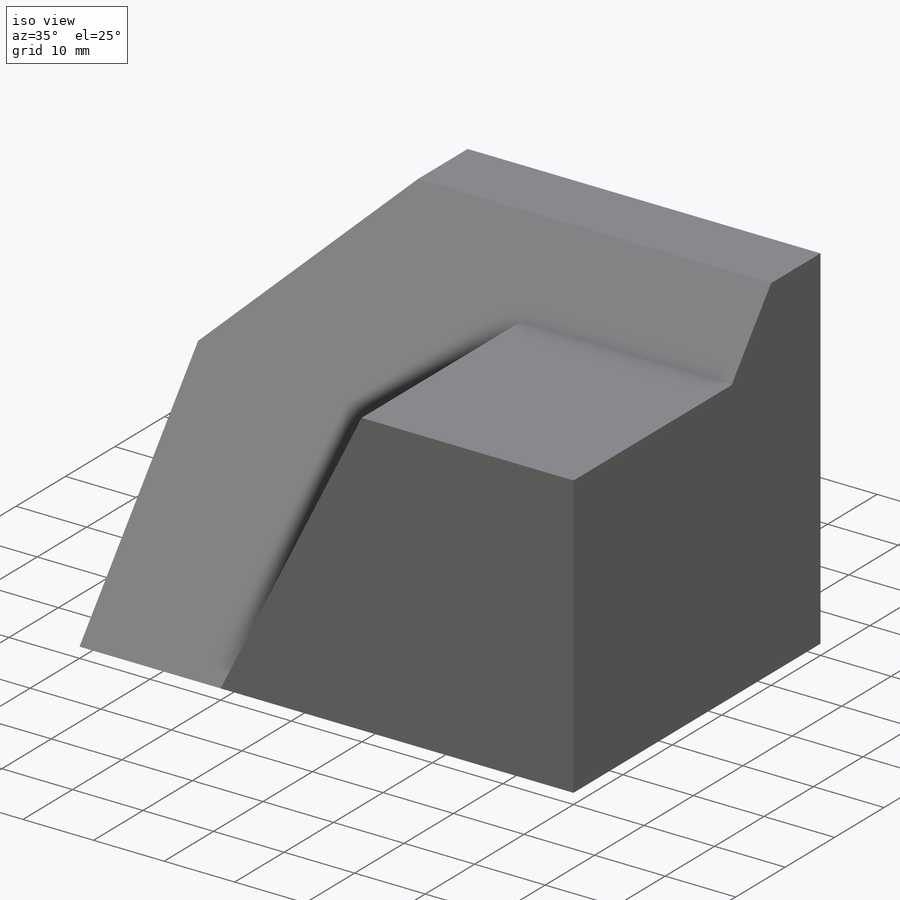
[diagram: iso view]
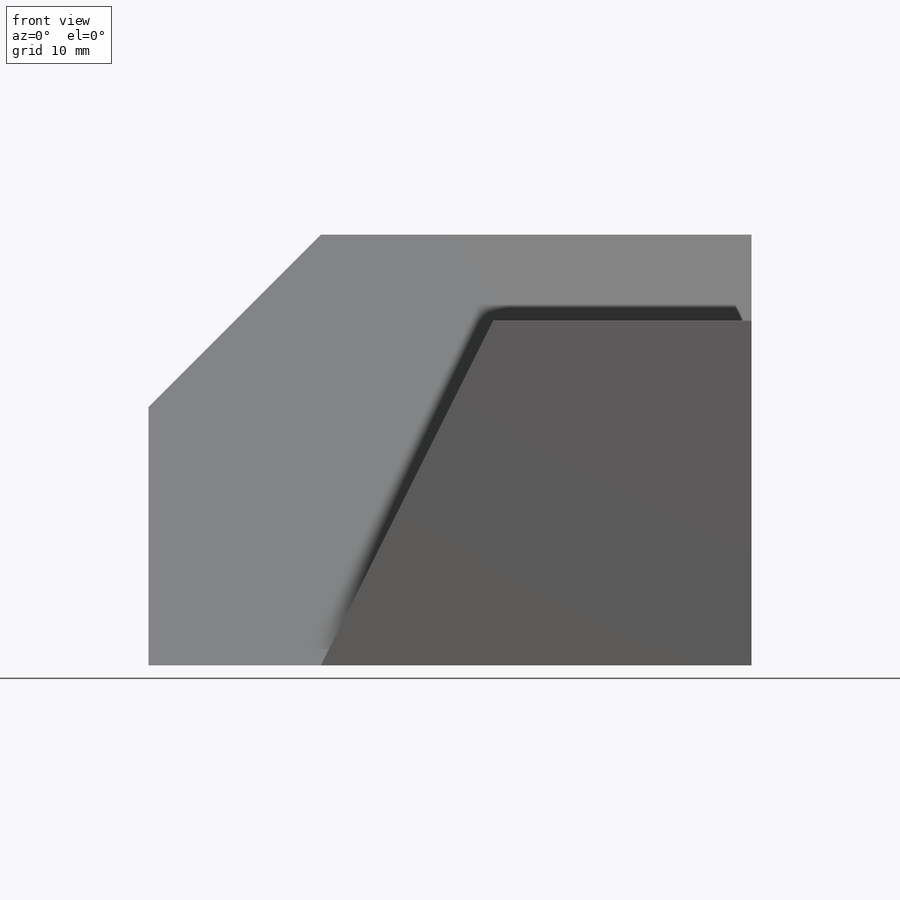
[diagram: front view]
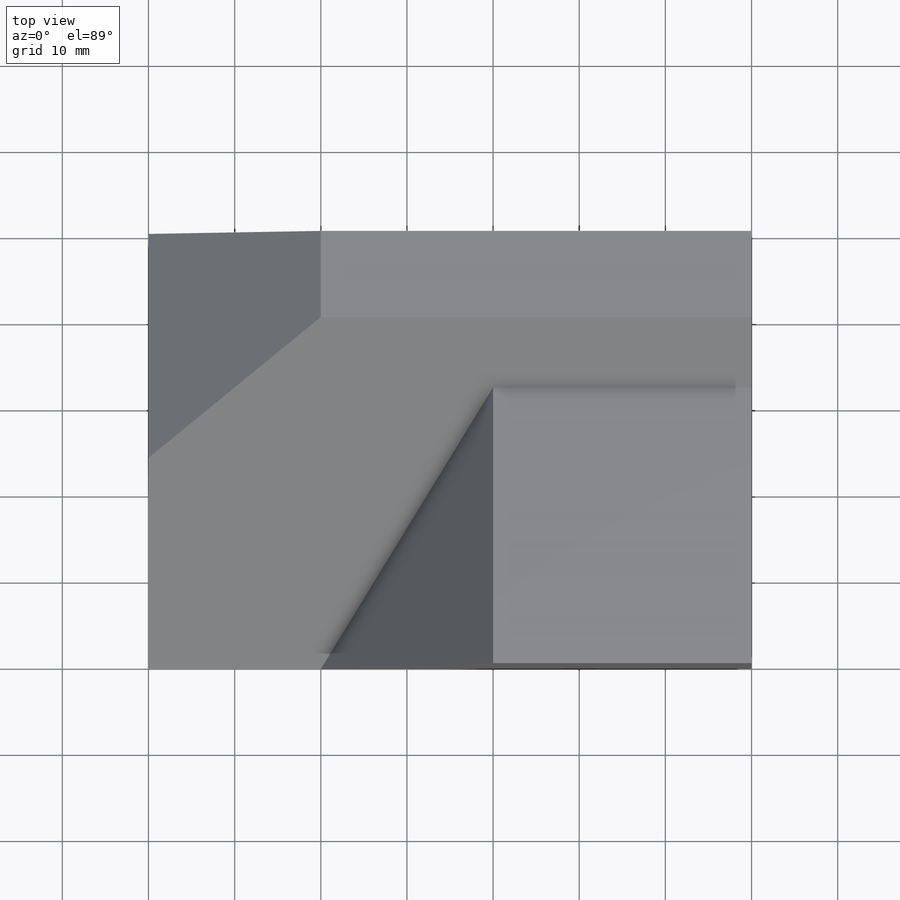
[diagram: top view]
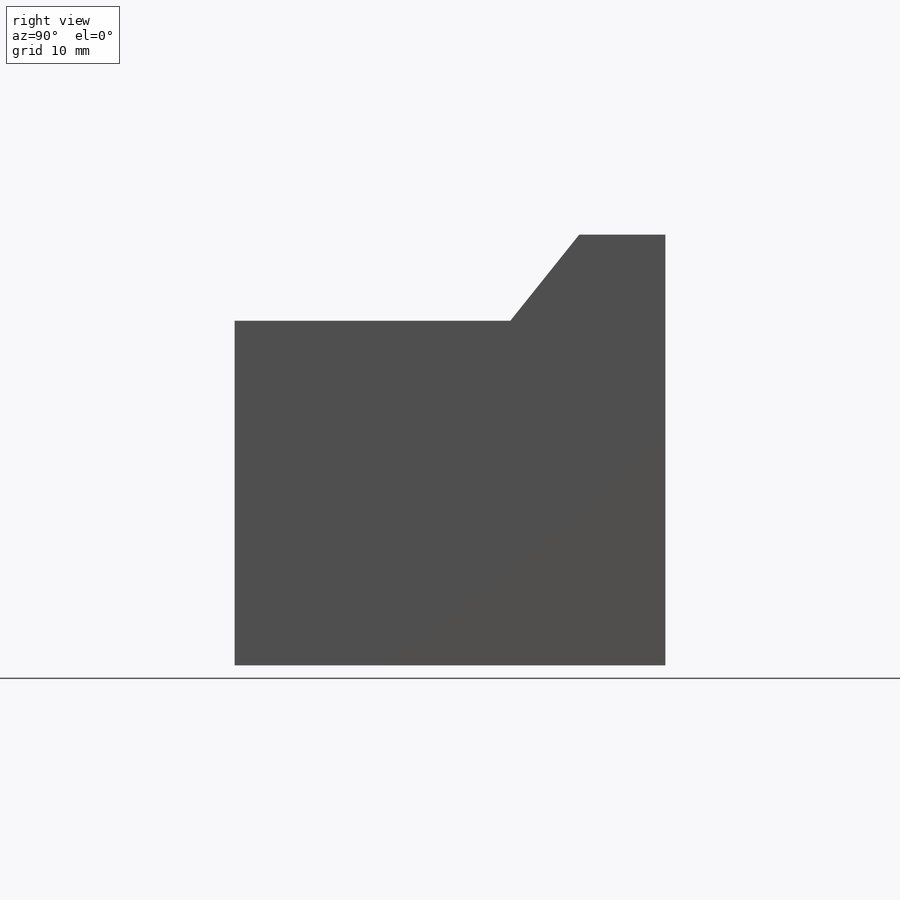
[diagram: right view]
SOLIDWORKS PART (.sldprt)
format: sldprt  version: not decoded by parser v0  size: 522,240 bytes
history: native  units: mm
features: sketch x33, cut_extrude x25, extrude x7, plane x5, material x1 (+13 scaffold rows collapsed)
feature tree (84):
  scaffold x13  (default folders/planes/origin — collapsed)
  material  "Material <not specified>"
  sketch  "Sketch1"  dims[D1=70.0mm D2=50.0mm]
  extrude  "Boss-Extrude1"  Depth=50mm
  sketch  "Sketch2"  dims[D1=20.0mm D2=20.0mm]
  cut_extrude  "Cut-Extrude1"  Depth=50mm
  sketch  "Sketch3"  dims[D1=10.0mm D2=40.0mm D3=30.0mm]
  cut_extrude  "Cut-Extrude2"  Depth=81mm
  sketch  "Sketch4"  dims[D1=20.0mm D2=30.0mm]
  cut_extrude  "Cut-Extrude4"  Depth=30mm
  plane  "Plane1"
  plane  "Plane2"
  sketch  "Sketch5"
  plane  "Plane3"
  sketch  "Sketch6"
  extrude  "Boss-Extrude4"  Depth=73mm
  sketch  "Sketch7"
  cut_extrude  "Cut-Extrude5"  Depth=73mm
  sketch  "Sketch8"
  cut_extrude  "Cut-Extrude6"  Depth=73mm
  sketch  "Sketch9"
  cut_extrude  "Cut-Extrude7"  Depth=73mm
  sketch  "Sketch10"
  cut_extrude  "Cut-Extrude8"  Depth=73mm
  sketch  "Sketch11"
  cut_extrude  "Cut-Extrude9"  Depth=73mm
  sketch  "Sketch12"
  cut_extrude  "Cut-Extrude10"  Depth=73mm
  sketch  "Sketch13"
  cut_extrude  "Cut-Extrude11"  Depth=73mm
  sketch  "Sketch14"
  cut_extrude  "Cut-Extrude12"  Depth=73mm
  sketch  "Sketch15"
  cut_extrude  "Cut-Extrude13"  Depth=73mm
  sketch  "Sketch16"
  cut_extrude  "Cut-Extrude14"  Depth=73mm
  sketch  "Sketch17"
  cut_extrude  "Cut-Extrude15"  Depth=73mm
  sketch  "Sketch18"
  cut_extrude  "Cut-Extrude16"  Depth=73mm
  sketch  "Sketch19"
  cut_extrude  "Cut-Extrude17"  Depth=73mm
  sketch  "Sketch20"  dims[D1=30.0mm]
  extrude  "Boss-Extrude6"  Depth=40mm
  plane  "Plane4"
  sketch  "Sketch22"  dims[D1=50.0mm]
  extrude  "Boss-Extrude9"  Depth=20mm
  sketch  "Sketch23"
  cut_extrude  "Cut-Extrude18"  Depth=20mm
  sketch  "Sketch24"
  cut_extrude  "Cut-Extrude19"  Depth=20mm
  sketch  "Sketch25"
  cut_extrude  "Cut-Extrude20"  Depth=20mm
  sketch  "Sketch26"
  cut_extrude  "Cut-Extrude21"  Depth=20mm
  sketch  "Sketch27"
  cut_extrude  "Cut-Extrude22"  Depth=20mm
  sketch  "Sketch28"
  extrude  "Boss-Extrude10"  Depth=20mm
  sketch  "Sketch29"
  cut_extrude  "Cut-Extrude23"  Depth=20mm
  sketch  "Sketch30"  dims[D1=~19.391822mm D2=~23.226385mm]
  extrude  "Boss-Extrude12"  Depth=10mm
  sketch  "Sketch31"
  cut_extrude  "Cut-Extrude24"  Depth=10mm
  sketch  "Sketch32"
  cut_extrude  "Cut-Extrude25"  Depth=10mm
  plane  "Plane6"
  sketch  "Sketch35"
  cut_extrude  "Cut-Extrude28"  Depth=10mm
  sketch  "Sketch36"
  extrude  "Boss-Extrude14"  Depth=35mm
decode coverage: 39 of 65 modeling features carry decoded parameters
note: ~ marks probable driven/reference dimensions
note: suppression state not decoded; provenance and decode notes live in map.json
